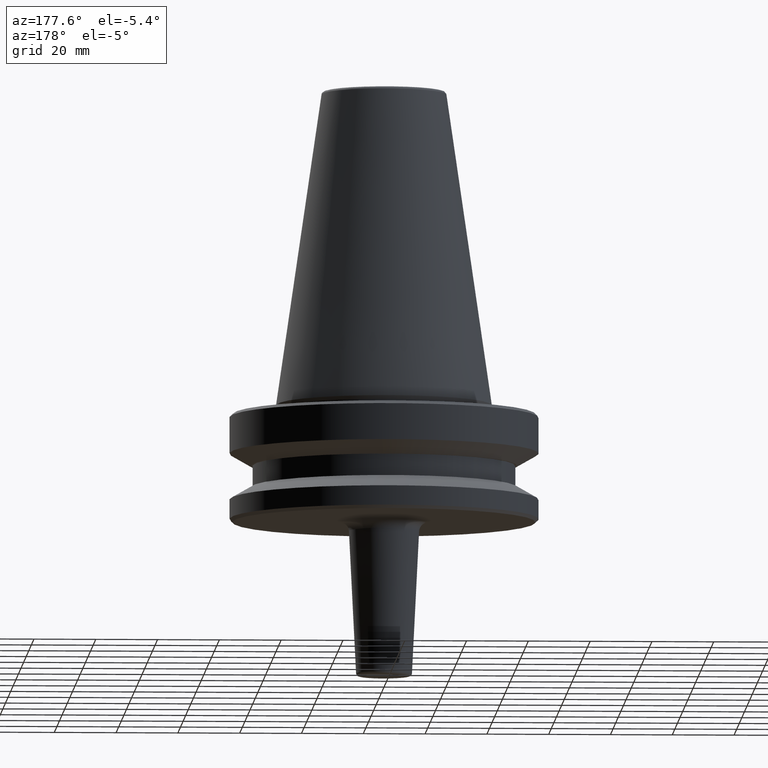
[diagram: clean part render]
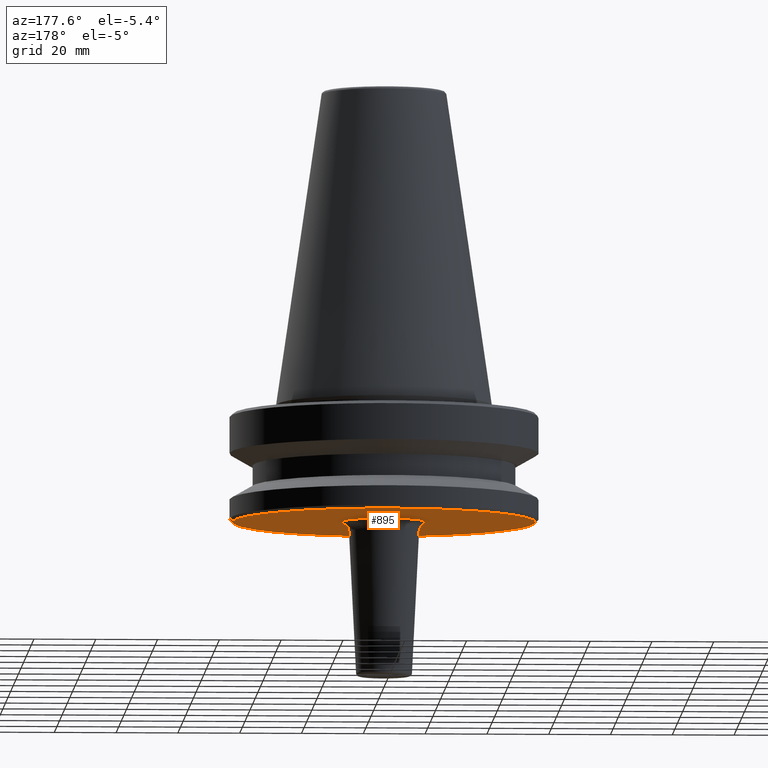
[diagram: same view with one face highlighted and labeled with its STEP entity id]
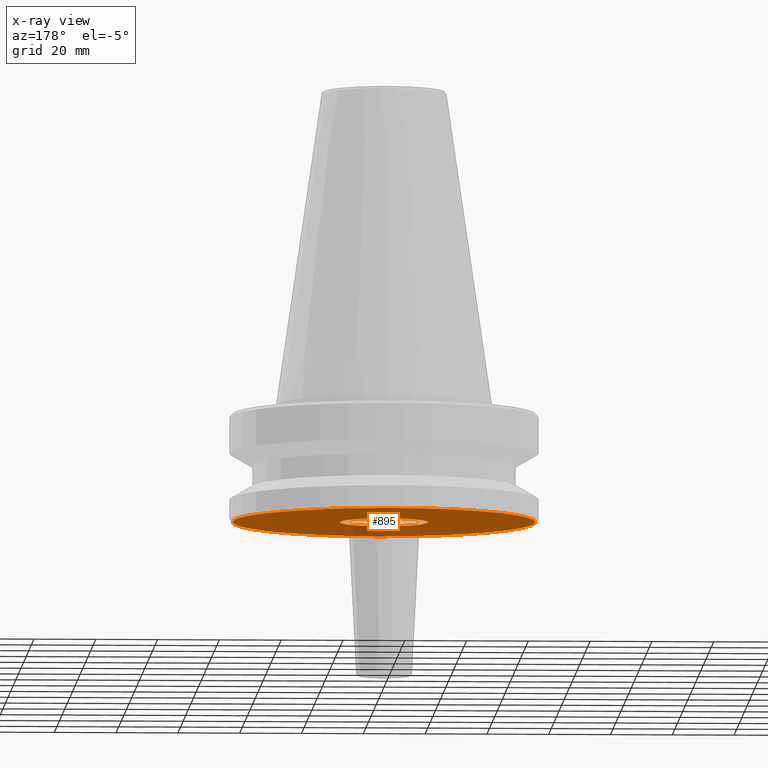
[diagram: x-ray of the same camera — body ghosted, the highlighted face saturated]
A machine part, auxiliary view. The second image highlights one B-rep face of the part: STEP entity #895.
The next image is the same camera in x-ray: the body ghosted, the highlighted face saturated — about 11% of this face is hidden behind the body in this view.
In plain terms, the highlighted planar face has unit normal (0, -0, 1).
Its self-contained STEP definition (entity closure, byte-faithful):
#1 = CARTESIAN_POINT ( 'NONE',  ( 0.0000000000000000000, 0.0000000000000000000, -38.00000000000002100 ) ) ;
#9 = DIRECTION ( 'NONE',  ( 1.000000000000000000, 0.0000000000000000000, 0.0000000000000000000 ) ) ;
#49 = CARTESIAN_POINT ( 'NONE',  ( 0.0000000000000000000, 0.0000000000000000000, -38.00000000000000700 ) ) ;
#65 = DIRECTION ( 'NONE',  ( 1.000000000000000000, 0.0000000000000000000, 0.0000000000000000000 ) ) ;
#85 = ORIENTED_EDGE ( 'NONE', *, *, #609, .F. ) ;
#101 = CIRCLE ( 'NONE', #517, 14.35374765917515600 ) ;
#110 = CARTESIAN_POINT ( 'NONE',  ( 0.0000000000000000000, 0.0000000000000000000, -38.00000000000000700 ) ) ;
#133 = AXIS2_PLACEMENT_3D ( 'NONE', #408, #356, #587 ) ;
#151 = DIRECTION ( 'NONE',  ( 1.000000000000000000, 0.0000000000000000000, 0.0000000000000000000 ) ) ;
#166 = VERTEX_POINT ( 'NONE', #182 ) ;
#171 = AXIS2_PLACEMENT_3D ( 'NONE', #110, #263, #418 ) ;
#182 = CARTESIAN_POINT ( 'NONE',  ( -14.35374765917515600, 1.757827112657767000E-015, -38.00000000000000700 ) ) ;
#189 = AXIS2_PLACEMENT_3D ( 'NONE', #1, #532, #65 ) ;
#250 = EDGE_CURVE ( 'NONE', #166, #331, #713, .T. ) ;
#261 = ORIENTED_EDGE ( 'NONE', *, *, #894, .F. ) ;
#263 = DIRECTION ( 'NONE',  ( -0.0000000000000000000, -0.0000000000000000000, 1.000000000000000000 ) ) ;
#311 = CIRCLE ( 'NONE', #189, 49.00000000000000000 ) ;
#331 = VERTEX_POINT ( 'NONE', #1000 ) ;
#356 = DIRECTION ( 'NONE',  ( -0.0000000000000000000, -0.0000000000000000000, 1.000000000000000000 ) ) ;
#367 = CIRCLE ( 'NONE', #133, 49.00000000000000000 ) ;
#408 = CARTESIAN_POINT ( 'NONE',  ( 0.0000000000000000000, 0.0000000000000000000, -38.00000000000002100 ) ) ;
#418 = DIRECTION ( 'NONE',  ( 1.000000000000000000, 0.0000000000000000000, 0.0000000000000000000 ) ) ;
#432 = PLANE ( 'NONE',  #437 ) ;
#437 = AXIS2_PLACEMENT_3D ( 'NONE', #987, #620, #151 ) ;
#439 = EDGE_LOOP ( 'NONE', ( #85, #261 ) ) ;
#517 = AXIS2_PLACEMENT_3D ( 'NONE', #49, #616, #9 ) ;
#532 = DIRECTION ( 'NONE',  ( -0.0000000000000000000, -0.0000000000000000000, 1.000000000000000000 ) ) ;
#587 = DIRECTION ( 'NONE',  ( 1.000000000000000000, 0.0000000000000000000, 0.0000000000000000000 ) ) ;
#609 = EDGE_CURVE ( 'NONE', #619, #622, #367, .T. ) ;
#616 = DIRECTION ( 'NONE',  ( -0.0000000000000000000, -0.0000000000000000000, 1.000000000000000000 ) ) ;
#619 = VERTEX_POINT ( 'NONE', #934 ) ;
#620 = DIRECTION ( 'NONE',  ( 0.0000000000000000000, -0.0000000000000000000, 1.000000000000000000 ) ) ;
#622 = VERTEX_POINT ( 'NONE', #940 ) ;
#652 = EDGE_CURVE ( 'NONE', #331, #166, #101, .T. ) ;
#681 = ORIENTED_EDGE ( 'NONE', *, *, #652, .T. ) ;
#700 = FACE_OUTER_BOUND ( 'NONE', #439, .T. ) ;
#713 = CIRCLE ( 'NONE', #171, 14.35374765917515600 ) ;
#723 = EDGE_LOOP ( 'NONE', ( #681, #804 ) ) ;
#728 = FACE_BOUND ( 'NONE', #723, .T. ) ;
#804 = ORIENTED_EDGE ( 'NONE', *, *, #250, .T. ) ;
#894 = EDGE_CURVE ( 'NONE', #622, #619, #311, .T. ) ;
#895 = ADVANCED_FACE ( 'NONE', ( #728, #700 ), #432, .F. ) ;
#934 = CARTESIAN_POINT ( 'NONE',  ( 49.00000000000000000, 0.0000000000000000000, -38.00000000000002100 ) ) ;
#940 = CARTESIAN_POINT ( 'NONE',  ( -49.00000000000000000, 6.062001655779398500E-015, -38.00000000000002100 ) ) ;
#987 = CARTESIAN_POINT ( 'NONE',  ( 0.0000000000000000000, 49.00000000000000000, -38.00000000000000700 ) ) ;
#1000 = CARTESIAN_POINT ( 'NONE',  ( 14.35374765917515600, 0.0000000000000000000, -38.00000000000000700 ) ) ;